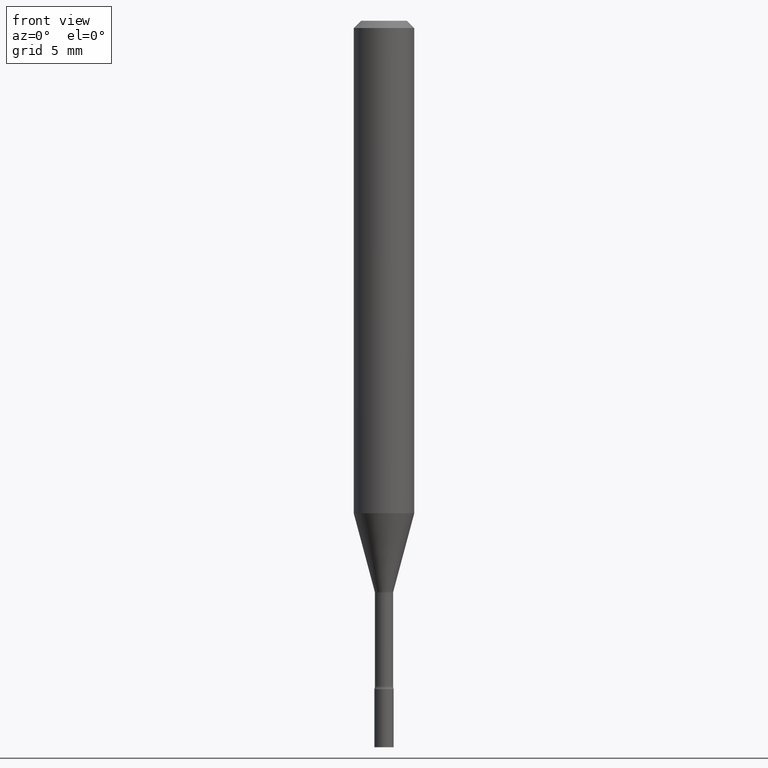
[diagram: clean part render]
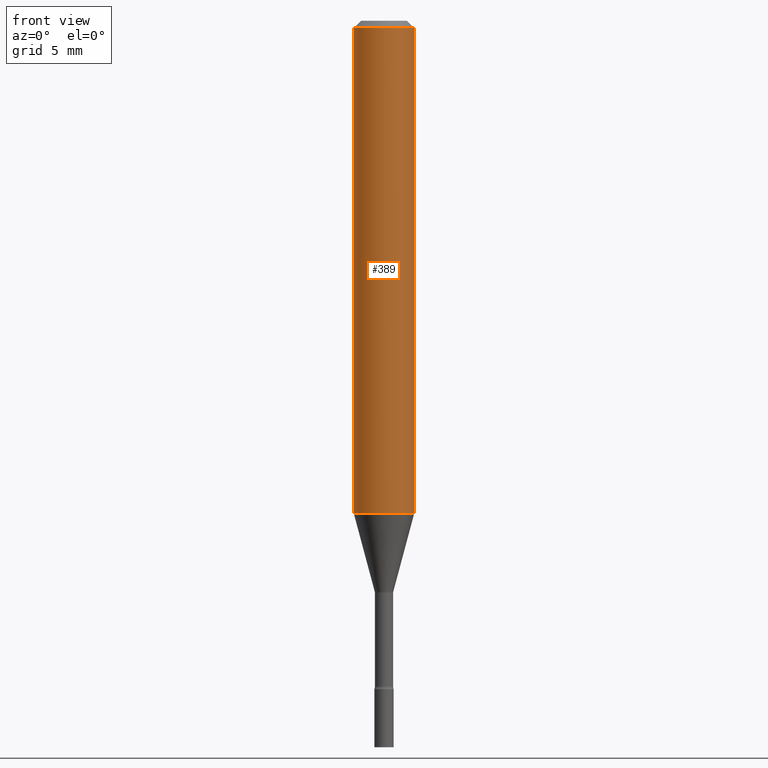
[diagram: same view with one face highlighted and labeled with its STEP entity id]
A machine part, front view. The second image highlights one B-rep face of the part: STEP entity #389.
In plain terms, the highlighted cylindrical surface (edge-blend (fillet) strip) has radius 1.5875 mm, axis along (-0, 0, 1).
Its self-contained STEP definition (entity closure, byte-faithful):
#1 = CIRCLE ( 'NONE', #288, 0.06250000000000000000 ) ;
#2 = DIRECTION ( 'NONE',  ( 1.000000000000000000, -6.982962677686266711E-15, 4.876176775795935793E-29 ) ) ;
#34 = VERTEX_POINT ( 'NONE', #284 ) ;
#57 = CIRCLE ( 'NONE', #72, 0.06250000000000000000 ) ;
#67 = CARTESIAN_POINT ( 'NONE',  ( -0.06250000000000000000, -1.357356961465947110E-15, -0.01500000000000003067 ) ) ;
#72 = AXIS2_PLACEMENT_3D ( 'NONE', #507, #298, #135 ) ;
#102 = CARTESIAN_POINT ( 'NONE',  ( -0.06250000000000000000, -3.106430912699309362E-15, -1.016909379709240557 ) ) ;
#104 = VERTEX_POINT ( 'NONE', #441 ) ;
#105 = VECTOR ( 'NONE', #225, 39.37007874015748143 ) ;
#108 = ORIENTED_EDGE ( 'NONE', *, *, #411, .T. ) ;
#124 = LINE ( 'NONE', #285, #150 ) ;
#135 = DIRECTION ( 'NONE',  ( 1.000000000000000000, -6.982962677686266711E-15, 0.000000000000000000 ) ) ;
#141 = DIRECTION ( 'NONE',  ( 1.000000000000000000, -6.982962677686270655E-15, 0.000000000000000000 ) ) ;
#146 = VERTEX_POINT ( 'NONE', #67 ) ;
#150 = VECTOR ( 'NONE', #498, 39.37007874015748143 ) ;
#188 = DIRECTION ( 'NONE',  ( -2.445468806185136597E-29, 3.491481338843145583E-15, 1.000000000000000000 ) ) ;
#191 = EDGE_CURVE ( 'NONE', #234, #146, #383, .T. ) ;
#211 = ORIENTED_EDGE ( 'NONE', *, *, #232, .F. ) ;
#223 = ORIENTED_EDGE ( 'NONE', *, *, #514, .T. ) ;
#225 = DIRECTION ( 'NONE',  ( -2.445468806185136877E-29, 3.491481338843145188E-15, 1.000000000000000000 ) ) ;
#232 = EDGE_CURVE ( 'NONE', #146, #34, #57, .T. ) ;
#234 = VERTEX_POINT ( 'NONE', #102 ) ;
#277 = ORIENTED_EDGE ( 'NONE', *, *, #191, .F. ) ;
#284 = CARTESIAN_POINT ( 'NONE',  ( 0.06250000000000000000, -4.888073874380389458E-16, -0.01500000000000003067 ) ) ;
#285 = CARTESIAN_POINT ( 'NONE',  ( 0.06250000000000000000, -4.364351673553916694E-16, 3.047610484872459871E-30 ) ) ;
#288 = AXIS2_PLACEMENT_3D ( 'NONE', #344, #512, #141 ) ;
#298 = DIRECTION ( 'NONE',  ( -2.445468806185136597E-29, 3.491481338843145583E-15, 1.000000000000000000 ) ) ;
#306 = FACE_OUTER_BOUND ( 'NONE', #390, .T. ) ;
#341 = CARTESIAN_POINT ( 'NONE',  ( -0.06250000000000000000, 4.440892098500626162E-16, -3.074334431409316114E-30 ) ) ;
#344 = CARTESIAN_POINT ( 'NONE',  ( 2.486820166796024310E-29, -3.550520122549371978E-15, -1.016909379709240557 ) ) ;
#355 = CYLINDRICAL_SURFACE ( 'NONE', #510, 0.06250000000000000000 ) ;
#383 = LINE ( 'NONE', #341, #105 ) ;
#389 = ADVANCED_FACE ( 'NONE', ( #306 ), #355, .T. ) ;
#390 = EDGE_LOOP ( 'NONE', ( #277, #108, #223, #211 ) ) ;
#411 = EDGE_CURVE ( 'NONE', #234, #104, #1, .T. ) ;
#430 = CARTESIAN_POINT ( 'NONE',  ( 0.000000000000000000, 0.000000000000000000, 0.000000000000000000 ) ) ;
#441 = CARTESIAN_POINT ( 'NONE',  ( 0.06250000000000000000, -3.986955289904763647E-15, -1.016909379709240557 ) ) ;
#498 = DIRECTION ( 'NONE',  ( -2.445468806185136877E-29, 3.491481338843145188E-15, 1.000000000000000000 ) ) ;
#507 = CARTESIAN_POINT ( 'NONE',  ( 3.668203209277712094E-31, -5.237222008264728876E-17, -0.01500000000000003067 ) ) ;
#510 = AXIS2_PLACEMENT_3D ( 'NONE', #430, #188, #2 ) ;
#512 = DIRECTION ( 'NONE',  ( -2.445468806185136597E-29, 3.491481338843145583E-15, 1.000000000000000000 ) ) ;
#514 = EDGE_CURVE ( 'NONE', #104, #34, #124, .T. ) ;